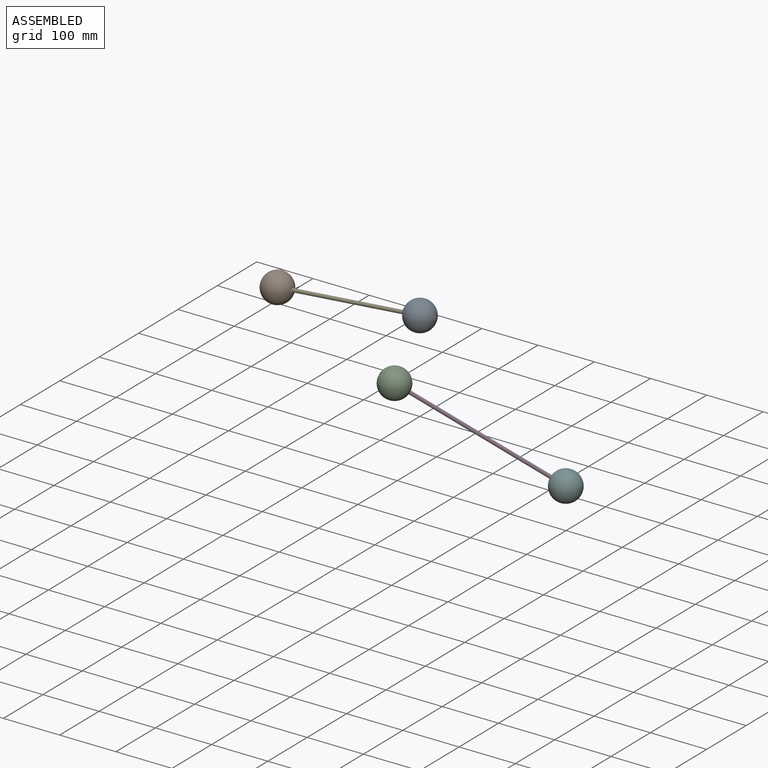
[diagram: assembled view]
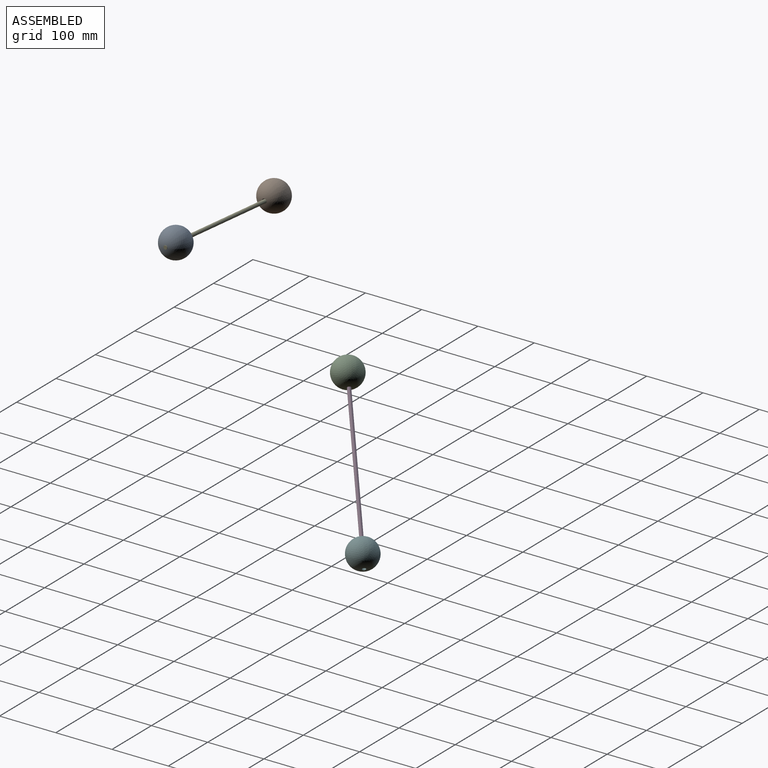
[diagram: assembled view, second angle]
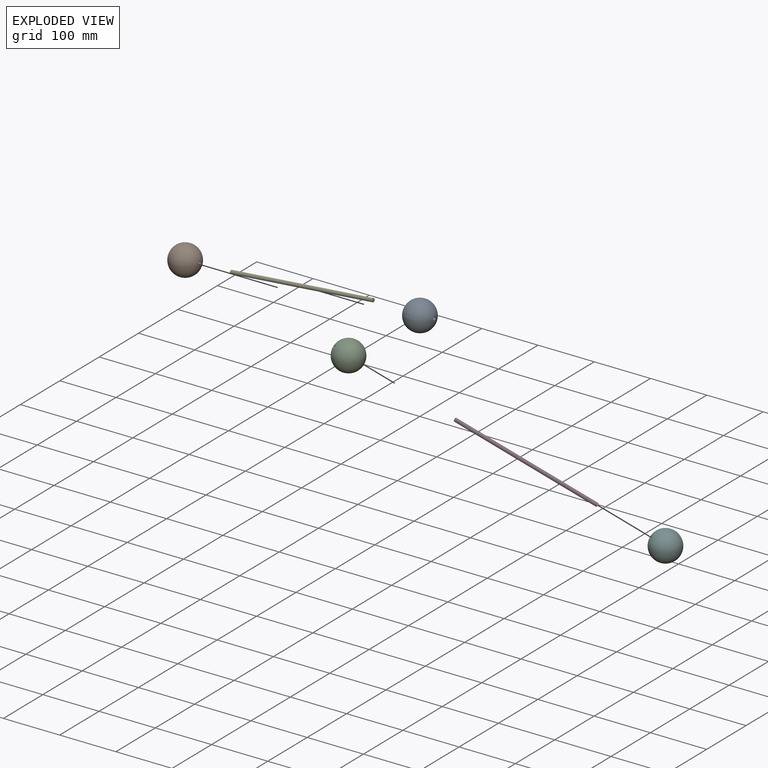
[diagram: exploded view]
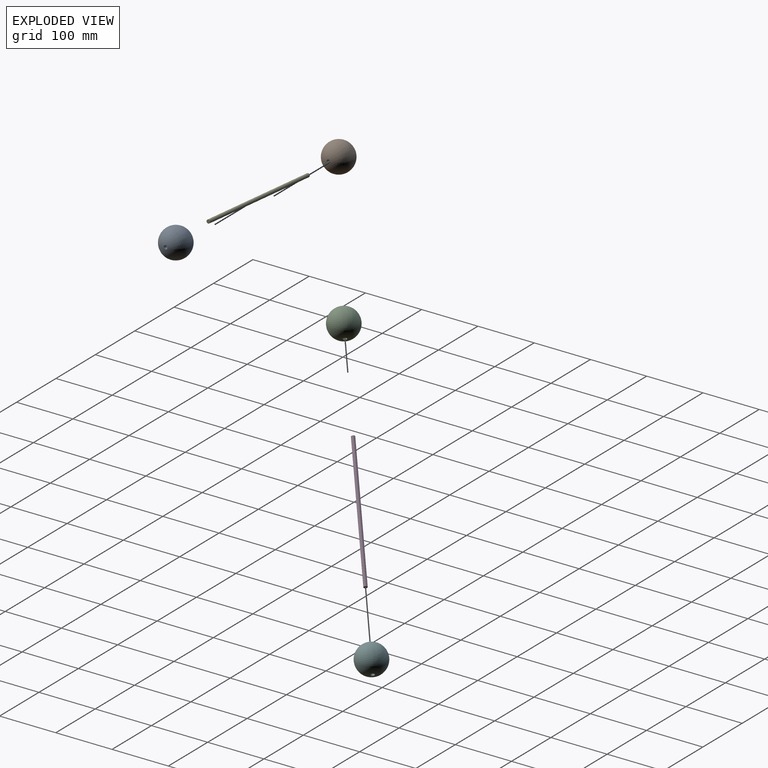
[diagram: exploded view, second angle]
ASSEMBLY  parts=6 mates=4
PART A: 2 faces, bbox 52x52x51.7 mm
  f0: revolved ~51.99x51.99mm, area 8430.9mm2, adj f1
  f1: cylinder r=3.17mm len=51.65mm, axis (0,0,-1), area 1030.4mm2, adj f0
PART B: same geometry as A
PART C: same geometry as A
PART D: 3 faces, bbox 6.4x254x6.4 mm
  f0: cylinder r=3.17mm len=254mm, axis (0,1,0), area 5067.1mm2, adj f1,f2
  f1: plane 6.35x6.35mm, normal (0,-1,0), area 31.7mm2, adj f0
  f2: plane 6.35x6.35mm, normal (0,1,0), area 31.7mm2, adj f0
PART E: same geometry as D
PART F: same geometry as A
PLACE A rot(axis=(0.59,-0.59,-0.54),122.9deg) t=(-110.22,-162.09,22.69)mm
PLACE B rot(axis=(0,1,0),85deg) t=(-414.09,-163.86,-3.4)mm
PLACE C rot(axis=(0.29,-0.79,0.55),67.1deg) t=(-293.81,35.56,-220.15)mm
PLACE D rot(axis=(0.14,0.3,0.94),132.5deg) t=(-293.94,35.46,-220.04)mm
PLACE E rot(axis=(0.04,-0.04,-1),90.1deg) t=(-109.36,-162.09,22.76)mm
PLACE F rot(axis=(0.46,0.17,-0.87),144.7deg) t=(-102.01,196.5,-395.47)mm
MATE planar E.f0 <-> B.f1  axis (-1,0,-0.09) through (-362.4,-162.09,0.63)mm
MATE planar C.f1 <-> D.f0  axis (-0.63,-0.53,0.57) through (-293.94,35.46,-220.04)mm
MATE cylindrical F.f1 <-> D.f0  axis (-0.63,-0.53,0.57) through (-134.55,169.2,-365.73)mm
MATE cylindrical A.f1 <-> E.f0  axis (-1,0,-0.09) through (-110.42,-162.09,22.67)mm
